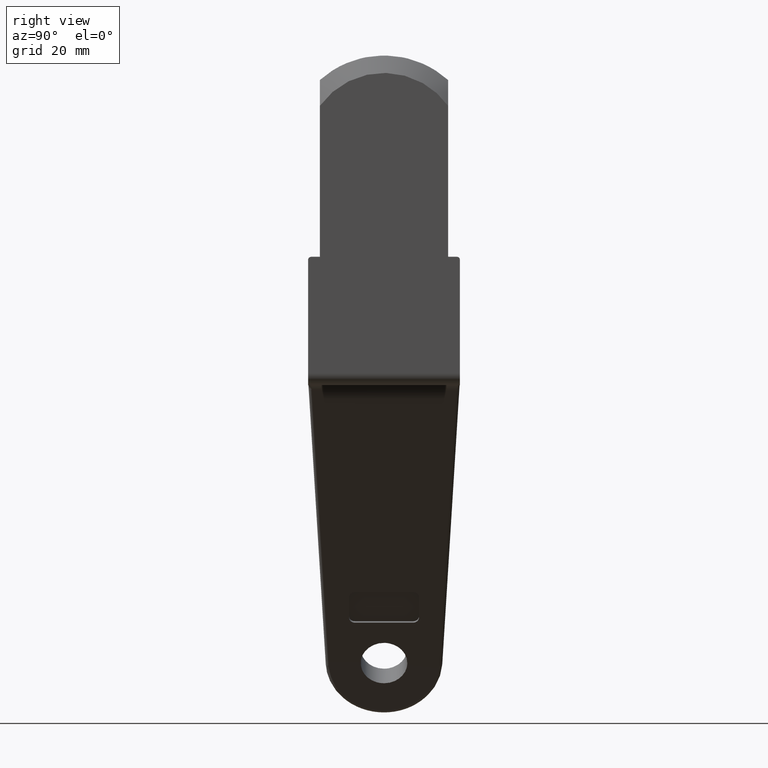
[diagram: clean part render]
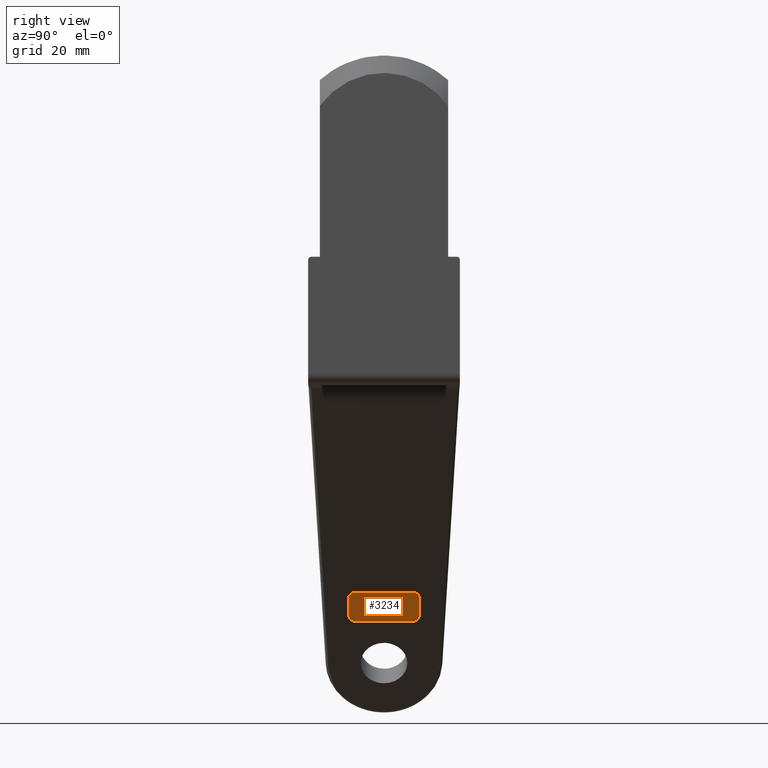
[diagram: same view with one face highlighted and labeled with its STEP entity id]
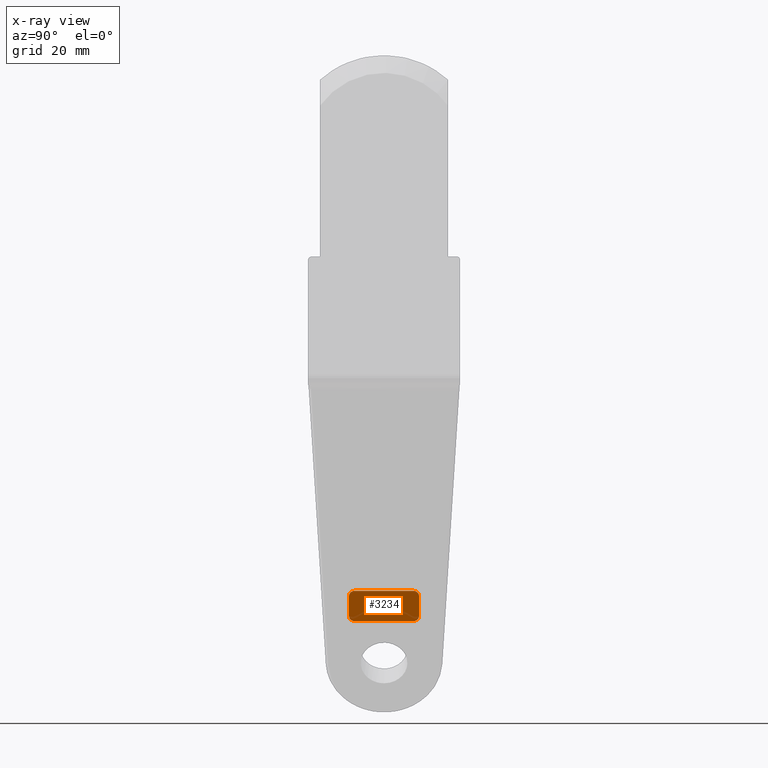
[diagram: x-ray of the same camera — body ghosted, the highlighted face saturated]
A machine part, right view. The second image highlights one B-rep face of the part: STEP entity #3234.
The next image is the same camera in x-ray: the body ghosted, the highlighted face saturated — about 0% of this face is hidden behind the body in this view.
In plain terms, the highlighted face is a freeform B-spline surface patch.
Its self-contained STEP definition (entity closure, byte-faithful):
#3139=CARTESIAN_POINT('',(-32.783163252508132,-6.599399976741672,-74.997494530847263));
#3140=CARTESIAN_POINT('',(-32.783163252508132,6.599400298606754,-74.997494530847263));
#3141=CARTESIAN_POINT('',(-36.082862983402762,-6.599399976741672,-80.712742009218886));
#3142=CARTESIAN_POINT('',(-36.082862983402762,6.599400298606754,-80.712742009218886));
#3143=B_SPLINE_SURFACE_WITH_KNOTS('',1,1,((#3139,#3141),(#3140,#3142)),.UNSPECIFIED.,.F.,.F.,.U.,(2,2),(2,2),(0.0,13.198800275348431),(0.0,6.599399370632091),.UNSPECIFIED.);
#3144=CARTESIAN_POINT('',(-35.933012494944762,-5.0,-80.453193354450605));
#3145=VERTEX_POINT('',#3144);
#3146=CARTESIAN_POINT('',(-35.933012494944762,5.0,-80.453193354450605));
#3147=VERTEX_POINT('',#3146);
#3148=CARTESIAN_POINT('',(-35.933012494944762,-5.0,-80.453193354450605));
#3149=CARTESIAN_POINT('',(-35.933012494944762,5.0,-80.453193354450605));
#3150=QUASI_UNIFORM_CURVE('',1,(#3148,#3149),.UNSPECIFIED.,.F.,.U.);
#3151=EDGE_CURVE('',#3145,#3147,#3150,.T.);
#3152=ORIENTED_EDGE('',*,*,#3151,.T.);
#3153=CARTESIAN_POINT('',(-35.433012488038287,6.0,-79.587167954653708));
#3154=VERTEX_POINT('',#3153);
#3155=CARTESIAN_POINT('',(-35.933012494944776,5.0,-80.453193354450690));
#3156=CARTESIAN_POINT('',(-35.933012494944784,6.0,-80.453193354450690));
#3157=CARTESIAN_POINT('',(-35.433012488038287,6.0,-79.587167954653708));
#3165=(BOUNDED_CURVE()B_SPLINE_CURVE(2,(#3155,#3156,#3157),.UNSPECIFIED.,.F.,.U.)CURVE()GEOMETRIC_REPRESENTATION_ITEM()QUASI_UNIFORM_CURVE()RATIONAL_B_SPLINE_CURVE((1.0,0.707106781186548,1.0))REPRESENTATION_ITEM(''));
#3166=EDGE_CURVE('',#3147,#3154,#3165,.T.);
#3167=ORIENTED_EDGE('',*,*,#3166,.T.);
#3168=CARTESIAN_POINT('',(-33.433012460412399,6.0,-76.123066355465696));
#3169=VERTEX_POINT('',#3168);
#3170=CARTESIAN_POINT('',(-35.433012488038287,6.0,-79.587167954653708));
#3171=CARTESIAN_POINT('',(-33.433012460412399,6.0,-76.123066355465696));
#3172=QUASI_UNIFORM_CURVE('',1,(#3170,#3171),.UNSPECIFIED.,.F.,.U.);
#3173=EDGE_CURVE('',#3154,#3169,#3172,.T.);
#3174=ORIENTED_EDGE('',*,*,#3173,.T.);
#3175=CARTESIAN_POINT('',(-32.933012453505903,5.0,-75.257040955668799));
#3176=VERTEX_POINT('',#3175);
#3177=CARTESIAN_POINT('',(-33.433012460412399,6.0,-76.123066355465696));
#3178=CARTESIAN_POINT('',(-32.933012453505924,6.0,-75.257040955668742));
#3179=CARTESIAN_POINT('',(-32.933012453505917,5.0,-75.257040955668728));
#3187=(BOUNDED_CURVE()B_SPLINE_CURVE(2,(#3177,#3178,#3179),.UNSPECIFIED.,.F.,.U.)CURVE()GEOMETRIC_REPRESENTATION_ITEM()QUASI_UNIFORM_CURVE()RATIONAL_B_SPLINE_CURVE((1.0,0.707106781186548,1.0))REPRESENTATION_ITEM(''));
#3188=EDGE_CURVE('',#3169,#3176,#3187,.T.);
#3189=ORIENTED_EDGE('',*,*,#3188,.T.);
#3190=CARTESIAN_POINT('',(-32.933012453505903,-5.0,-75.257040955668799));
#3191=VERTEX_POINT('',#3190);
#3192=CARTESIAN_POINT('',(-32.933012453505903,5.0,-75.257040955668799));
#3193=CARTESIAN_POINT('',(-32.933012453505903,-5.0,-75.257040955668799));
#3194=QUASI_UNIFORM_CURVE('',1,(#3192,#3193),.UNSPECIFIED.,.F.,.U.);
#3195=EDGE_CURVE('',#3176,#3191,#3194,.T.);
#3196=ORIENTED_EDGE('',*,*,#3195,.T.);
#3197=CARTESIAN_POINT('',(-33.433012460412399,-6.0,-76.123066355465696));
#3198=VERTEX_POINT('',#3197);
#3199=CARTESIAN_POINT('',(-32.933012453505917,-5.0,-75.257040955668728));
#3200=CARTESIAN_POINT('',(-32.933012453505924,-6.0,-75.257040955668742));
#3201=CARTESIAN_POINT('',(-33.433012460412399,-6.0,-76.123066355465696));
#3209=(BOUNDED_CURVE()B_SPLINE_CURVE(2,(#3199,#3200,#3201),.UNSPECIFIED.,.F.,.U.)CURVE()GEOMETRIC_REPRESENTATION_ITEM()QUASI_UNIFORM_CURVE()RATIONAL_B_SPLINE_CURVE((1.0,0.707106781186548,1.0))REPRESENTATION_ITEM(''));
#3210=EDGE_CURVE('',#3191,#3198,#3209,.T.);
#3211=ORIENTED_EDGE('',*,*,#3210,.T.);
#3212=CARTESIAN_POINT('',(-35.433012488038287,-6.0,-79.587167954653708));
#3213=VERTEX_POINT('',#3212);
#3214=CARTESIAN_POINT('',(-33.433012460412399,-6.0,-76.123066355465696));
#3215=CARTESIAN_POINT('',(-35.433012488038287,-6.0,-79.587167954653708));
#3216=QUASI_UNIFORM_CURVE('',1,(#3214,#3215),.UNSPECIFIED.,.F.,.U.);
#3217=EDGE_CURVE('',#3198,#3213,#3216,.T.);
#3218=ORIENTED_EDGE('',*,*,#3217,.T.);
#3219=CARTESIAN_POINT('',(-35.433012488038287,-6.0,-79.587167954653708));
#3220=CARTESIAN_POINT('',(-35.933012494944784,-6.0,-80.453193354450690));
#3221=CARTESIAN_POINT('',(-35.933012494944776,-5.0,-80.453193354450690));
#3229=(BOUNDED_CURVE()B_SPLINE_CURVE(2,(#3219,#3220,#3221),.UNSPECIFIED.,.F.,.U.)CURVE()GEOMETRIC_REPRESENTATION_ITEM()QUASI_UNIFORM_CURVE()RATIONAL_B_SPLINE_CURVE((1.0,0.707106781186548,1.0))REPRESENTATION_ITEM(''));
#3230=EDGE_CURVE('',#3213,#3145,#3229,.T.);
#3231=ORIENTED_EDGE('',*,*,#3230,.T.);
#3232=EDGE_LOOP('',(#3152,#3167,#3174,#3189,#3196,#3211,#3218,#3231));
#3233=FACE_OUTER_BOUND('',#3232,.T.);
#3234=ADVANCED_FACE('',(#3233),#3143,.F.);